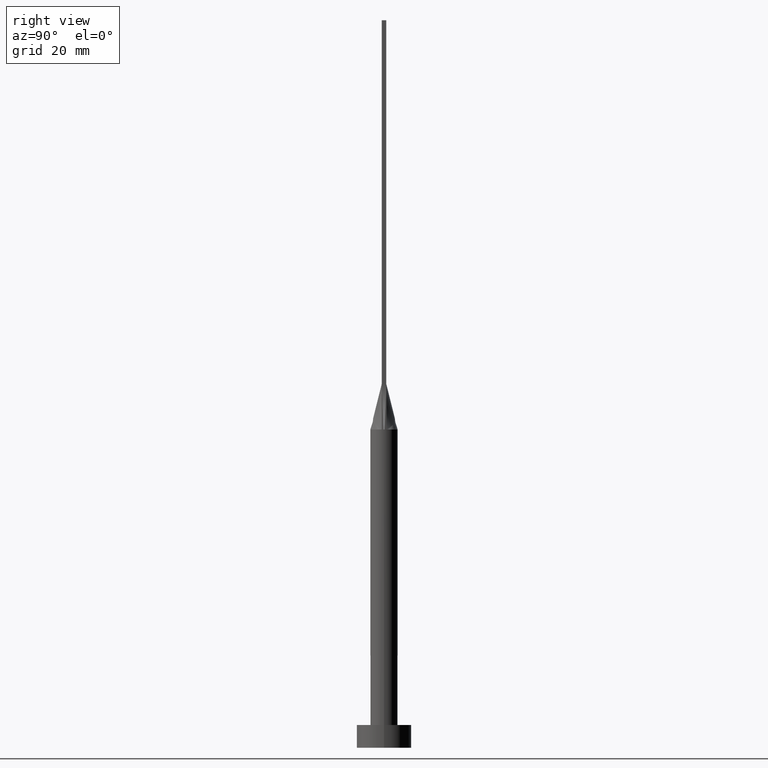
[diagram: clean part render]
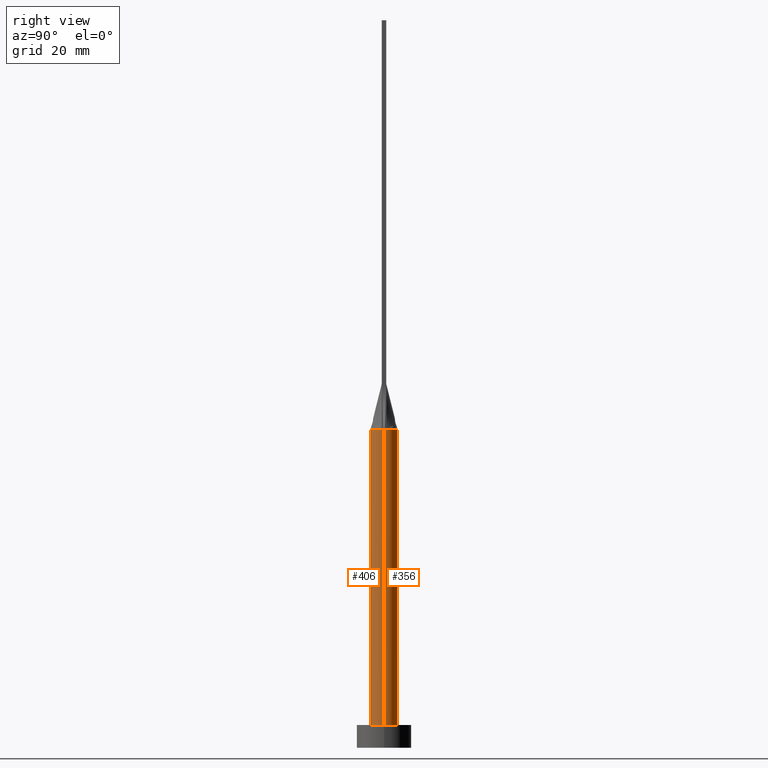
[diagram: same view with one multi-face feature highlighted, each face labeled with its STEP entity id]
A machine part, right view. The highlighted faces form ONE feature: a constant-radius fillet chain: 2 tangent blend faces with common blend radius 3 mm. The faces share edges in the B-rep.
Their STEP definitions:
[1] entity #356 (Cylinder):
#2 = ORIENTED_EDGE ( 'NONE', *, *, #115, .F. ) ;
#33 = VECTOR ( 'NONE', #363, 1000.000000000000000 ) ;
#36 = AXIS2_PLACEMENT_3D ( 'NONE', #222, #512, #414 ) ;
#44 = CARTESIAN_POINT ( 'NONE',  ( -2.951881273711813858, 0.5367053345652121887, 70.00000000000000000 ) ) ;
#52 = ORIENTED_EDGE ( 'NONE', *, *, #178, .F. ) ;
#63 = VERTEX_POINT ( 'NONE', #113 ) ;
#65 = CARTESIAN_POINT ( 'NONE',  ( 2.382399439808187580, 1.857547746650221709, 70.00000000000000000 ) ) ;
#68 = CARTESIAN_POINT ( 'NONE',  ( 1.882426928433512892, 2.362790634184934291, 69.99999999999998579 ) ) ;
#76 = CARTESIAN_POINT ( 'NONE',  ( 2.999804865149861666, 7.183978618307599791E-16, 70.00000000000000000 ) ) ;
#90 = DIRECTION ( 'NONE',  ( -0.000000000000000000, -0.000000000000000000, -1.000000000000000000 ) ) ;
#99 = AXIS2_PLACEMENT_3D ( 'NONE', #570, #122, #299 ) ;
#113 = CARTESIAN_POINT ( 'NONE',  ( -2.951881273711813858, 0.5367053345652121887, 70.00000000000000000 ) ) ;
#115 = EDGE_CURVE ( 'NONE', #500, #520, #311, .T. ) ;
#122 = DIRECTION ( 'NONE',  ( -0.000000000000000000, -0.000000000000000000, -1.000000000000000000 ) ) ;
#128 = EDGE_CURVE ( 'NONE', #343, #377, #263, .T. ) ;
#129 = CARTESIAN_POINT ( 'NONE',  ( -2.829409566978765334, 1.041313647073049298, 70.00000000000001421 ) ) ;
#144 = CARTESIAN_POINT ( 'NONE',  ( -3.000000000000000444, 0.000000000000000000, 5.000000000000000000 ) ) ;
#150 = DIRECTION ( 'NONE',  ( 0.000000000000000000, 0.000000000000000000, 1.000000000000000000 ) ) ;
#151 = CARTESIAN_POINT ( 'NONE',  ( 2.567367750129863957, 1.580669302822274913, 70.00000000000000000 ) ) ;
#157 = CARTESIAN_POINT ( 'NONE',  ( -1.882426928433513336, 2.362790634184935623, 70.00000000000001421 ) ) ;
#173 = CARTESIAN_POINT ( 'NONE',  ( 0.4172881767044975820, 3.000000000000000000, 70.00000000000000000 ) ) ;
#174 = DIRECTION ( 'NONE',  ( 1.000000000000000000, 0.000000000000000000, 0.000000000000000000 ) ) ;
#176 = CARTESIAN_POINT ( 'NONE',  ( 0.8331239790496237640, 2.909606296598776787, 69.99999999999998579 ) ) ;
#178 = EDGE_CURVE ( 'NONE', #63, #500, #353, .T. ) ;
#180 = CIRCLE ( 'NONE', #36, 3.000000000000000444 ) ;
#183 = ORIENTED_EDGE ( 'NONE', *, *, #459, .T. ) ;
#189 = CIRCLE ( 'NONE', #347, 3.000000000000000444 ) ;
#201 = CARTESIAN_POINT ( 'NONE',  ( 2.951871110830718514, 0.5367036202482695639, 70.00000000000000000 ) ) ;
#222 = CARTESIAN_POINT ( 'NONE',  ( 0.000000000000000000, 0.000000000000000000, 5.000000000000000000 ) ) ;
#228 = CARTESIAN_POINT ( 'NONE',  ( -2.907609730299723250, 0.7786563145999495505, 70.00000000000001421 ) ) ;
#247 = AXIS2_PLACEMENT_3D ( 'NONE', #440, #354, #174 ) ;
#260 = CARTESIAN_POINT ( 'NONE',  ( -1.566158656300002061, 2.589797565249319700, 69.99999999999998579 ) ) ;
#263 = LINE ( 'NONE', #403, #33 ) ;
#283 = B_SPLINE_CURVE_WITH_KNOTS ( 'NONE', 3,
 ( #201, #390, #524, #151, #65, #68, #394, #176, #173, #352, #538, #260, #157, #441, #532, #129, #228, #44 ),
 .UNSPECIFIED., .F., .F.,
 ( 4, 2, 2, 2, 2, 2, 2, 2, 4 ),
 ( 0.000000000000000000, 0.1250000000000000000, 0.2500000000000000000, 0.3750000000000000000, 0.5000000000000000000, 0.6250000000000000000, 0.7500000000000000000, 0.8750000000000000000, 1.000000000000000000 ),
 .UNSPECIFIED. ) ;
#284 = ORIENTED_EDGE ( 'NONE', *, *, #504, .F. ) ;
#299 = DIRECTION ( 'NONE',  ( -1.000000000000000000, 0.000000000000000000, 0.000000000000000000 ) ) ;
#311 = LINE ( 'NONE', #488, #405 ) ;
#343 = VERTEX_POINT ( 'NONE', #76 ) ;
#347 = AXIS2_PLACEMENT_3D ( 'NONE', #562, #150, #561 ) ;
#352 = CARTESIAN_POINT ( 'NONE',  ( -0.4172881767044976375, 2.999999999999999556, 69.99999999999998579 ) ) ;
#353 = CIRCLE ( 'NONE', #247, 3.000000000000000444 ) ;
#354 = DIRECTION ( 'NONE',  ( 0.000000000000000000, 0.000000000000000000, 1.000000000000000000 ) ) ;
#355 = ORIENTED_EDGE ( 'NONE', *, *, #128, .T. ) ;
#356 = ADVANCED_FACE ( 'NONE', ( #386 ), #521, .T. ) ;
#363 = DIRECTION ( 'NONE',  ( -0.000000000000000000, -0.000000000000000000, -1.000000000000000000 ) ) ;
#371 = CARTESIAN_POINT ( 'NONE',  ( -2.999804865149861666, -2.046477192139111704E-15, 70.00000000000000000 ) ) ;
#377 = VERTEX_POINT ( 'NONE', #487 ) ;
#386 = FACE_OUTER_BOUND ( 'NONE', #534, .T. ) ;
#390 = CARTESIAN_POINT ( 'NONE',  ( 2.907609730299723250, 0.7786563145999496616, 70.00000000000001421 ) ) ;
#394 = CARTESIAN_POINT ( 'NONE',  ( 1.566158656300002061, 2.589797565249318811, 70.00000000000000000 ) ) ;
#403 = CARTESIAN_POINT ( 'NONE',  ( 3.000000000000000444, 3.673940397442060361E-16, 70.00000000000000000 ) ) ;
#405 = VECTOR ( 'NONE', #90, 1000.000000000000000 ) ;
#414 = DIRECTION ( 'NONE',  ( 1.000000000000000000, 0.000000000000000000, 0.000000000000000000 ) ) ;
#438 = EDGE_CURVE ( 'NONE', #523, #63, #283, .T. ) ;
#440 = CARTESIAN_POINT ( 'NONE',  ( 0.000000000000000000, 0.000000000000000000, 70.00000000000000000 ) ) ;
#441 = CARTESIAN_POINT ( 'NONE',  ( -2.382399439808186692, 1.857547746650221265, 70.00000000000001421 ) ) ;
#459 = EDGE_CURVE ( 'NONE', #377, #520, #180, .T. ) ;
#487 = CARTESIAN_POINT ( 'NONE',  ( 3.000000000000000444, 3.673940397442060361E-16, 5.000000000000000000 ) ) ;
#488 = CARTESIAN_POINT ( 'NONE',  ( -3.000000000000000444, 0.000000000000000000, 70.00000000000000000 ) ) ;
#495 = ORIENTED_EDGE ( 'NONE', *, *, #438, .F. ) ;
#498 = CARTESIAN_POINT ( 'NONE',  ( 2.951871110830718514, 0.5367036202482695639, 70.00000000000000000 ) ) ;
#500 = VERTEX_POINT ( 'NONE', #371 ) ;
#504 = EDGE_CURVE ( 'NONE', #343, #523, #189, .T. ) ;
#512 = DIRECTION ( 'NONE',  ( 0.000000000000000000, 0.000000000000000000, 1.000000000000000000 ) ) ;
#520 = VERTEX_POINT ( 'NONE', #144 ) ;
#521 = CYLINDRICAL_SURFACE ( 'NONE', #99, 3.000000000000000444 ) ;
#523 = VERTEX_POINT ( 'NONE', #498 ) ;
#524 = CARTESIAN_POINT ( 'NONE',  ( 2.829409566978765778, 1.041313647073049298, 70.00000000000000000 ) ) ;
#532 = CARTESIAN_POINT ( 'NONE',  ( -2.567367750129864401, 1.580669302822275357, 70.00000000000001421 ) ) ;
#534 = EDGE_LOOP ( 'NONE', ( #284, #355, #183, #2, #52, #495 ) ) ;
#538 = CARTESIAN_POINT ( 'NONE',  ( -0.8331239790496237640, 2.909606296598777231, 70.00000000000001421 ) ) ;
#561 = DIRECTION ( 'NONE',  ( 1.000000000000000000, 0.000000000000000000, 0.000000000000000000 ) ) ;
#562 = CARTESIAN_POINT ( 'NONE',  ( 0.000000000000000000, 0.000000000000000000, 70.00000000000000000 ) ) ;
#570 = CARTESIAN_POINT ( 'NONE',  ( 0.000000000000000000, 0.000000000000000000, 70.00000000000000000 ) ) ;
[2] entity #406 (Cylinder):
#4 = CYLINDRICAL_SURFACE ( 'NONE', #154, 3.000000000000000444 ) ;
#33 = VECTOR ( 'NONE', #363, 1000.000000000000000 ) ;
#38 = EDGE_CURVE ( 'NONE', #365, #272, #134, .T. ) ;
#45 = EDGE_CURVE ( 'NONE', #500, #365, #453, .T. ) ;
#54 = CARTESIAN_POINT ( 'NONE',  ( 0.000000000000000000, 0.000000000000000000, 70.00000000000000000 ) ) ;
#76 = CARTESIAN_POINT ( 'NONE',  ( 2.999804865149861666, 7.183978618307599791E-16, 70.00000000000000000 ) ) ;
#80 = ORIENTED_EDGE ( 'NONE', *, *, #128, .F. ) ;
#90 = DIRECTION ( 'NONE',  ( -0.000000000000000000, -0.000000000000000000, -1.000000000000000000 ) ) ;
#93 = FACE_OUTER_BOUND ( 'NONE', #108, .T. ) ;
#101 = ORIENTED_EDGE ( 'NONE', *, *, #45, .F. ) ;
#108 = EDGE_LOOP ( 'NONE', ( #80, #546, #551, #101, #160, #518 ) ) ;
#112 = DIRECTION ( 'NONE',  ( 1.000000000000000000, 0.000000000000000000, 0.000000000000000000 ) ) ;
#115 = EDGE_CURVE ( 'NONE', #500, #520, #311, .T. ) ;
#121 = DIRECTION ( 'NONE',  ( 1.000000000000000000, 0.000000000000000000, 0.000000000000000000 ) ) ;
#124 = CARTESIAN_POINT ( 'NONE',  ( 0.000000000000000000, 0.000000000000000000, 70.00000000000000000 ) ) ;
#128 = EDGE_CURVE ( 'NONE', #343, #377, #263, .T. ) ;
#134 = CIRCLE ( 'NONE', #195, 3.000000000000000444 ) ;
#137 = CIRCLE ( 'NONE', #281, 3.000000000000000444 ) ;
#141 = CARTESIAN_POINT ( 'NONE',  ( 0.000000000000000000, 0.000000000000000000, 70.00000000000000000 ) ) ;
#144 = CARTESIAN_POINT ( 'NONE',  ( -3.000000000000000444, 0.000000000000000000, 5.000000000000000000 ) ) ;
#154 = AXIS2_PLACEMENT_3D ( 'NONE', #175, #544, #314 ) ;
#160 = ORIENTED_EDGE ( 'NONE', *, *, #115, .T. ) ;
#175 = CARTESIAN_POINT ( 'NONE',  ( 0.000000000000000000, 0.000000000000000000, 70.00000000000000000 ) ) ;
#195 = AXIS2_PLACEMENT_3D ( 'NONE', #141, #553, #497 ) ;
#239 = CARTESIAN_POINT ( 'NONE',  ( 2.951896064709005785, -0.5367080392066734262, 70.00000000000000000 ) ) ;
#249 = AXIS2_PLACEMENT_3D ( 'NONE', #385, #507, #112 ) ;
#252 = CARTESIAN_POINT ( 'NONE',  ( -2.951885853416577277, -0.5367063210726346068, 70.00000000000000000 ) ) ;
#263 = LINE ( 'NONE', #403, #33 ) ;
#272 = VERTEX_POINT ( 'NONE', #239 ) ;
#281 = AXIS2_PLACEMENT_3D ( 'NONE', #124, #302, #477 ) ;
#301 = EDGE_CURVE ( 'NONE', #520, #377, #542, .T. ) ;
#302 = DIRECTION ( 'NONE',  ( 0.000000000000000000, 0.000000000000000000, 1.000000000000000000 ) ) ;
#308 = AXIS2_PLACEMENT_3D ( 'NONE', #54, #509, #121 ) ;
#311 = LINE ( 'NONE', #488, #405 ) ;
#314 = DIRECTION ( 'NONE',  ( -1.000000000000000000, 0.000000000000000000, 0.000000000000000000 ) ) ;
#343 = VERTEX_POINT ( 'NONE', #76 ) ;
#362 = EDGE_CURVE ( 'NONE', #272, #343, #137, .T. ) ;
#363 = DIRECTION ( 'NONE',  ( -0.000000000000000000, -0.000000000000000000, -1.000000000000000000 ) ) ;
#365 = VERTEX_POINT ( 'NONE', #252 ) ;
#371 = CARTESIAN_POINT ( 'NONE',  ( -2.999804865149861666, -2.046477192139111704E-15, 70.00000000000000000 ) ) ;
#377 = VERTEX_POINT ( 'NONE', #487 ) ;
#385 = CARTESIAN_POINT ( 'NONE',  ( 0.000000000000000000, 0.000000000000000000, 5.000000000000000000 ) ) ;
#403 = CARTESIAN_POINT ( 'NONE',  ( 3.000000000000000444, 3.673940397442060361E-16, 70.00000000000000000 ) ) ;
#405 = VECTOR ( 'NONE', #90, 1000.000000000000000 ) ;
#406 = ADVANCED_FACE ( 'NONE', ( #93 ), #4, .T. ) ;
#453 = CIRCLE ( 'NONE', #308, 3.000000000000000444 ) ;
#477 = DIRECTION ( 'NONE',  ( 1.000000000000000000, 1.776356839400250465E-15, 0.000000000000000000 ) ) ;
#487 = CARTESIAN_POINT ( 'NONE',  ( 3.000000000000000444, 3.673940397442060361E-16, 5.000000000000000000 ) ) ;
#488 = CARTESIAN_POINT ( 'NONE',  ( -3.000000000000000444, 0.000000000000000000, 70.00000000000000000 ) ) ;
#497 = DIRECTION ( 'NONE',  ( 1.000000000000000000, 0.000000000000000000, 0.000000000000000000 ) ) ;
#500 = VERTEX_POINT ( 'NONE', #371 ) ;
#507 = DIRECTION ( 'NONE',  ( 0.000000000000000000, 0.000000000000000000, 1.000000000000000000 ) ) ;
#509 = DIRECTION ( 'NONE',  ( 0.000000000000000000, 0.000000000000000000, 1.000000000000000000 ) ) ;
#518 = ORIENTED_EDGE ( 'NONE', *, *, #301, .T. ) ;
#520 = VERTEX_POINT ( 'NONE', #144 ) ;
#542 = CIRCLE ( 'NONE', #249, 3.000000000000000444 ) ;
#544 = DIRECTION ( 'NONE',  ( -0.000000000000000000, -0.000000000000000000, -1.000000000000000000 ) ) ;
#546 = ORIENTED_EDGE ( 'NONE', *, *, #362, .F. ) ;
#551 = ORIENTED_EDGE ( 'NONE', *, *, #38, .F. ) ;
#553 = DIRECTION ( 'NONE',  ( 0.000000000000000000, 0.000000000000000000, 1.000000000000000000 ) ) ;